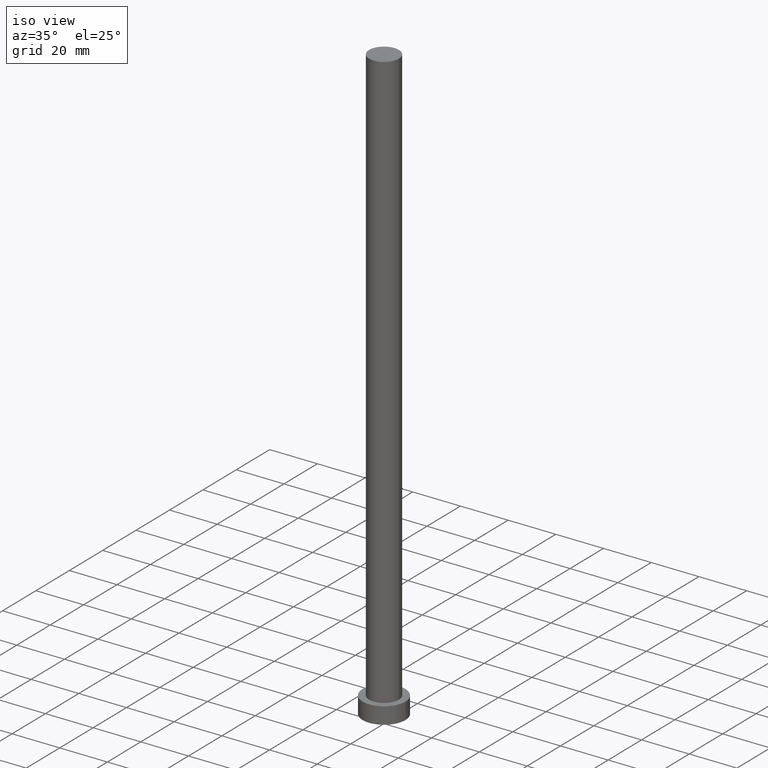
[diagram: clean part render]
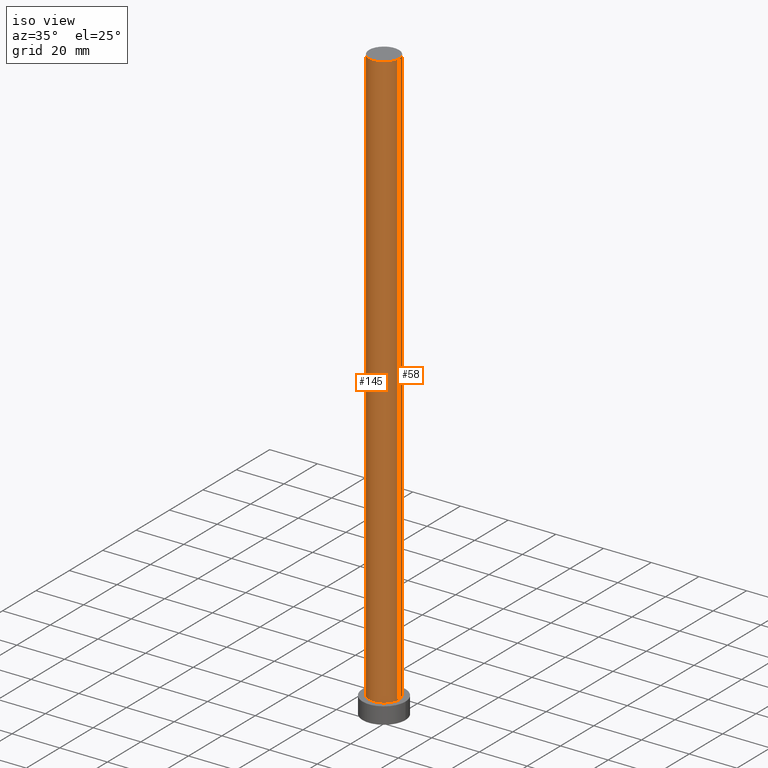
[diagram: same view with one multi-face feature highlighted, each face labeled with its STEP entity id]
A machine part, iso view. The highlighted faces form ONE feature: a constant-radius fillet chain: 2 tangent blend faces with common blend radius 6.25 mm. The faces share edges in the B-rep.
Their STEP definitions:
[1] entity #145 (Cylinder):
#25 = CARTESIAN_POINT ( 'NONE',  ( 6.250000000000000000, 7.654042494670957606E-16, 7.000000000000000000 ) ) ;
#34 = DIRECTION ( 'NONE',  ( -1.000000000000000000, 0.000000000000000000, 0.000000000000000000 ) ) ;
#35 = CARTESIAN_POINT ( 'NONE',  ( -6.250000000000000000, 0.000000000000000000, 7.000000000000000000 ) ) ;
#42 = ORIENTED_EDGE ( 'NONE', *, *, #209, .T. ) ;
#44 = ORIENTED_EDGE ( 'NONE', *, *, #254, .T. ) ;
#65 = ORIENTED_EDGE ( 'NONE', *, *, #191, .F. ) ;
#76 = CARTESIAN_POINT ( 'NONE',  ( 0.000000000000000000, 0.000000000000000000, 7.000000000000000000 ) ) ;
#79 = CYLINDRICAL_SURFACE ( 'NONE', #174, 6.250000000000000000 ) ;
#94 = CARTESIAN_POINT ( 'NONE',  ( 0.000000000000000000, 0.000000000000000000, 250.0000000000000000 ) ) ;
#98 = VECTOR ( 'NONE', #210, 1000.000000000000000 ) ;
#102 = VERTEX_POINT ( 'NONE', #199 ) ;
#107 = DIRECTION ( 'NONE',  ( 1.000000000000000000, 0.000000000000000000, 0.000000000000000000 ) ) ;
#113 = VERTEX_POINT ( 'NONE', #25 ) ;
#114 = EDGE_CURVE ( 'NONE', #102, #215, #222, .T. ) ;
#119 = CIRCLE ( 'NONE', #170, 6.250000000000000000 ) ;
#131 = DIRECTION ( 'NONE',  ( 0.000000000000000000, 0.000000000000000000, 1.000000000000000000 ) ) ;
#134 = LINE ( 'NONE', #155, #98 ) ;
#138 = EDGE_LOOP ( 'NONE', ( #65, #239, #42, #44 ) ) ;
#145 = ADVANCED_FACE ( 'NONE', ( #207 ), #79, .T. ) ;
#151 = DIRECTION ( 'NONE',  ( 1.000000000000000000, 0.000000000000000000, 0.000000000000000000 ) ) ;
#155 = CARTESIAN_POINT ( 'NONE',  ( -6.250000000000000000, 0.000000000000000000, 250.0000000000000000 ) ) ;
#168 = VECTOR ( 'NONE', #206, 1000.000000000000000 ) ;
#170 = AXIS2_PLACEMENT_3D ( 'NONE', #76, #189, #151 ) ;
#171 = CARTESIAN_POINT ( 'NONE',  ( 6.250000000000000000, 7.654042494670957606E-16, 250.0000000000000000 ) ) ;
#174 = AXIS2_PLACEMENT_3D ( 'NONE', #252, #212, #34 ) ;
#178 = AXIS2_PLACEMENT_3D ( 'NONE', #94, #131, #107 ) ;
#189 = DIRECTION ( 'NONE',  ( 0.000000000000000000, 0.000000000000000000, 1.000000000000000000 ) ) ;
#191 = EDGE_CURVE ( 'NONE', #215, #113, #230, .T. ) ;
#199 = CARTESIAN_POINT ( 'NONE',  ( -6.250000000000000000, 0.000000000000000000, 250.0000000000000000 ) ) ;
#206 = DIRECTION ( 'NONE',  ( -0.000000000000000000, -0.000000000000000000, -1.000000000000000000 ) ) ;
#207 = FACE_OUTER_BOUND ( 'NONE', #138, .T. ) ;
#209 = EDGE_CURVE ( 'NONE', #102, #237, #134, .T. ) ;
#210 = DIRECTION ( 'NONE',  ( -0.000000000000000000, -0.000000000000000000, -1.000000000000000000 ) ) ;
#212 = DIRECTION ( 'NONE',  ( -0.000000000000000000, -0.000000000000000000, -1.000000000000000000 ) ) ;
#215 = VERTEX_POINT ( 'NONE', #171 ) ;
#222 = CIRCLE ( 'NONE', #178, 6.250000000000000000 ) ;
#230 = LINE ( 'NONE', #231, #168 ) ;
#231 = CARTESIAN_POINT ( 'NONE',  ( 6.250000000000000000, 7.654042494670957606E-16, 250.0000000000000000 ) ) ;
#237 = VERTEX_POINT ( 'NONE', #35 ) ;
#239 = ORIENTED_EDGE ( 'NONE', *, *, #114, .F. ) ;
#252 = CARTESIAN_POINT ( 'NONE',  ( 0.000000000000000000, 0.000000000000000000, 250.0000000000000000 ) ) ;
#254 = EDGE_CURVE ( 'NONE', #237, #113, #119, .T. ) ;
[2] entity #58 (Cylinder):
#9 = ORIENTED_EDGE ( 'NONE', *, *, #191, .T. ) ;
#23 = EDGE_LOOP ( 'NONE', ( #175, #9, #147, #104 ) ) ;
#25 = CARTESIAN_POINT ( 'NONE',  ( 6.250000000000000000, 7.654042494670957606E-16, 7.000000000000000000 ) ) ;
#35 = CARTESIAN_POINT ( 'NONE',  ( -6.250000000000000000, 0.000000000000000000, 7.000000000000000000 ) ) ;
#48 = DIRECTION ( 'NONE',  ( -0.000000000000000000, -0.000000000000000000, -1.000000000000000000 ) ) ;
#54 = DIRECTION ( 'NONE',  ( 1.000000000000000000, 0.000000000000000000, 0.000000000000000000 ) ) ;
#58 = ADVANCED_FACE ( 'NONE', ( #109 ), #129, .T. ) ;
#80 = DIRECTION ( 'NONE',  ( 0.000000000000000000, 0.000000000000000000, 1.000000000000000000 ) ) ;
#89 = CIRCLE ( 'NONE', #116, 6.250000000000000000 ) ;
#90 = CARTESIAN_POINT ( 'NONE',  ( 0.000000000000000000, 0.000000000000000000, 250.0000000000000000 ) ) ;
#95 = AXIS2_PLACEMENT_3D ( 'NONE', #90, #48, #242 ) ;
#98 = VECTOR ( 'NONE', #210, 1000.000000000000000 ) ;
#102 = VERTEX_POINT ( 'NONE', #199 ) ;
#104 = ORIENTED_EDGE ( 'NONE', *, *, #209, .F. ) ;
#109 = FACE_OUTER_BOUND ( 'NONE', #23, .T. ) ;
#113 = VERTEX_POINT ( 'NONE', #25 ) ;
#116 = AXIS2_PLACEMENT_3D ( 'NONE', #173, #80, #249 ) ;
#129 = CYLINDRICAL_SURFACE ( 'NONE', #95, 6.250000000000000000 ) ;
#134 = LINE ( 'NONE', #155, #98 ) ;
#140 = EDGE_CURVE ( 'NONE', #215, #102, #89, .T. ) ;
#147 = ORIENTED_EDGE ( 'NONE', *, *, #200, .T. ) ;
#152 = CIRCLE ( 'NONE', #213, 6.250000000000000000 ) ;
#155 = CARTESIAN_POINT ( 'NONE',  ( -6.250000000000000000, 0.000000000000000000, 250.0000000000000000 ) ) ;
#168 = VECTOR ( 'NONE', #206, 1000.000000000000000 ) ;
#171 = CARTESIAN_POINT ( 'NONE',  ( 6.250000000000000000, 7.654042494670957606E-16, 250.0000000000000000 ) ) ;
#173 = CARTESIAN_POINT ( 'NONE',  ( 0.000000000000000000, 0.000000000000000000, 250.0000000000000000 ) ) ;
#175 = ORIENTED_EDGE ( 'NONE', *, *, #140, .F. ) ;
#188 = CARTESIAN_POINT ( 'NONE',  ( 0.000000000000000000, 0.000000000000000000, 7.000000000000000000 ) ) ;
#191 = EDGE_CURVE ( 'NONE', #215, #113, #230, .T. ) ;
#199 = CARTESIAN_POINT ( 'NONE',  ( -6.250000000000000000, 0.000000000000000000, 250.0000000000000000 ) ) ;
#200 = EDGE_CURVE ( 'NONE', #113, #237, #152, .T. ) ;
#206 = DIRECTION ( 'NONE',  ( -0.000000000000000000, -0.000000000000000000, -1.000000000000000000 ) ) ;
#209 = EDGE_CURVE ( 'NONE', #102, #237, #134, .T. ) ;
#210 = DIRECTION ( 'NONE',  ( -0.000000000000000000, -0.000000000000000000, -1.000000000000000000 ) ) ;
#213 = AXIS2_PLACEMENT_3D ( 'NONE', #188, #250, #54 ) ;
#215 = VERTEX_POINT ( 'NONE', #171 ) ;
#230 = LINE ( 'NONE', #231, #168 ) ;
#231 = CARTESIAN_POINT ( 'NONE',  ( 6.250000000000000000, 7.654042494670957606E-16, 250.0000000000000000 ) ) ;
#237 = VERTEX_POINT ( 'NONE', #35 ) ;
#242 = DIRECTION ( 'NONE',  ( -1.000000000000000000, 0.000000000000000000, 0.000000000000000000 ) ) ;
#249 = DIRECTION ( 'NONE',  ( 1.000000000000000000, 0.000000000000000000, 0.000000000000000000 ) ) ;
#250 = DIRECTION ( 'NONE',  ( 0.000000000000000000, 0.000000000000000000, 1.000000000000000000 ) ) ;